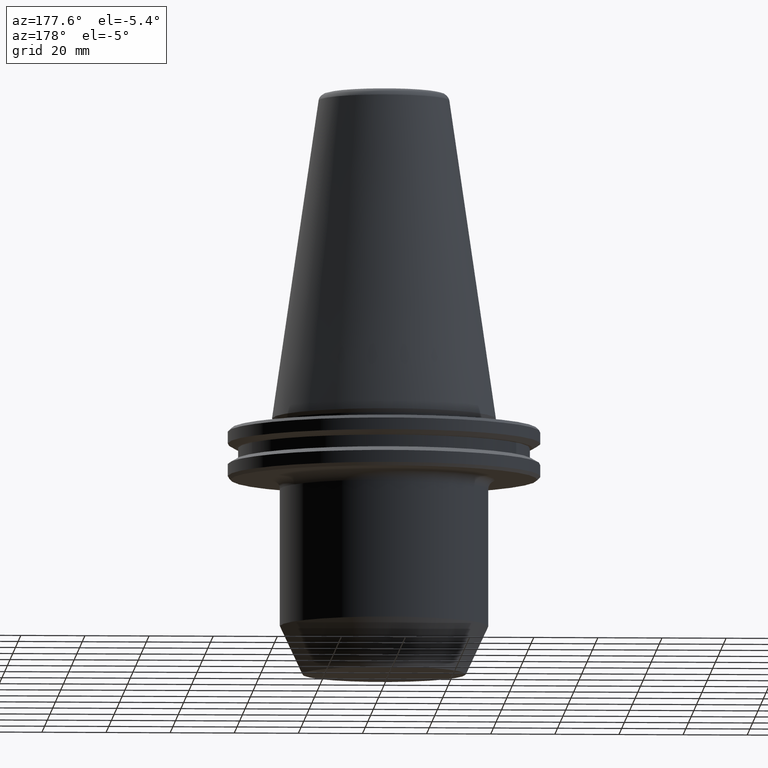
[diagram: clean part render]
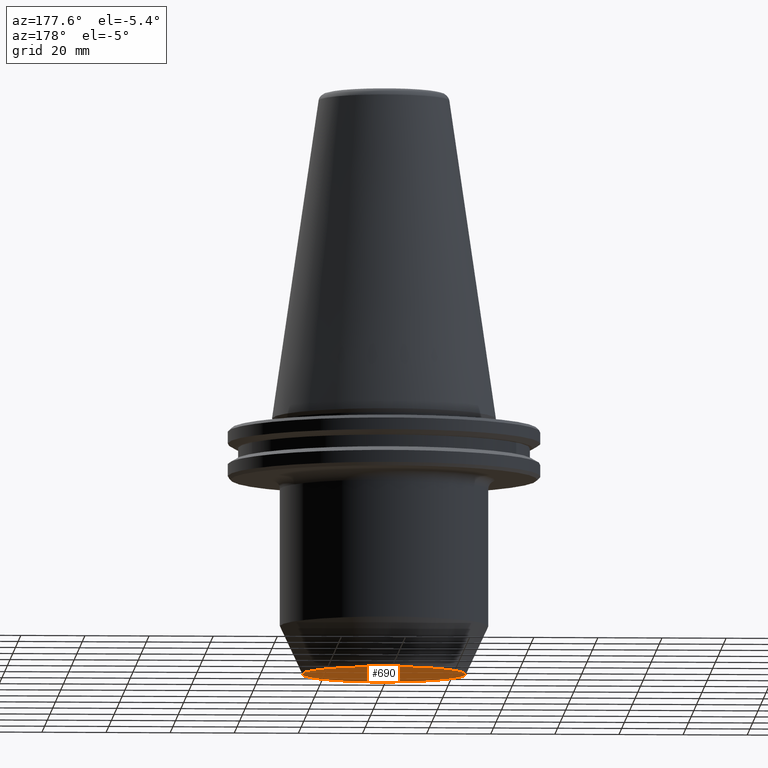
[diagram: same view with one face highlighted and labeled with its STEP entity id]
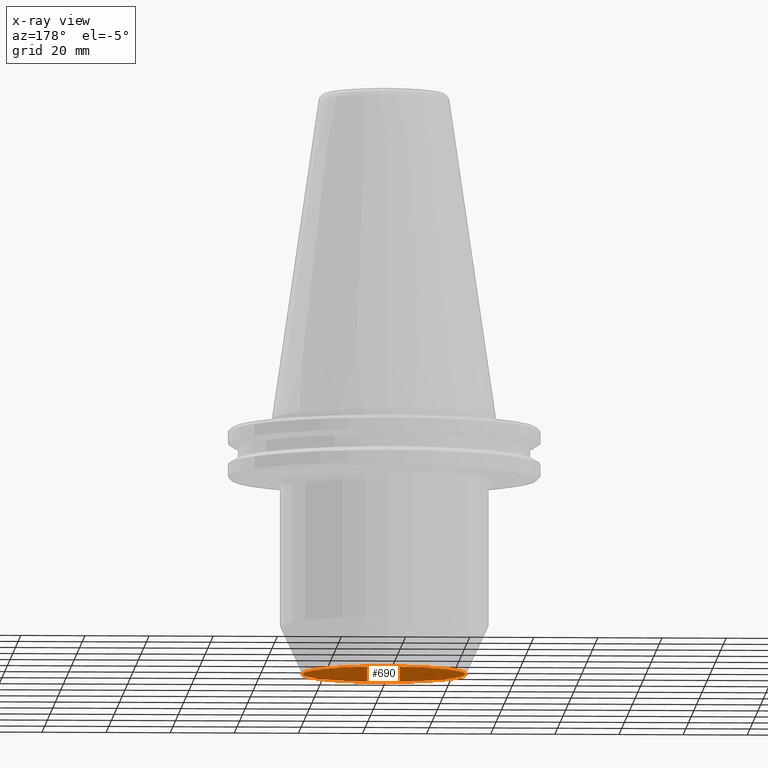
[diagram: x-ray of the same camera — body ghosted, the highlighted face saturated]
A machine part, auxiliary view. The second image highlights one B-rep face of the part: STEP entity #690.
The next image is the same camera in x-ray: the body ghosted, the highlighted face saturated — about 0% of this face is hidden behind the body in this view.
In plain terms, the highlighted planar face has unit normal (0, -0, 1).
Its self-contained STEP definition (entity closure, byte-faithful):
#57 = FACE_OUTER_BOUND ( 'NONE', #233, .T. ) ;
#113 = CARTESIAN_POINT ( 'NONE',  ( 25.50000000000000000, 0.0000000000000000000, -79.99999999999998600 ) ) ;
#121 = PLANE ( 'NONE',  #262 ) ;
#192 = VERTEX_POINT ( 'NONE', #113 ) ;
#233 = EDGE_LOOP ( 'NONE', ( #418, #572 ) ) ;
#242 = EDGE_CURVE ( 'NONE', #192, #248, #838, .T. ) ;
#248 = VERTEX_POINT ( 'NONE', #451 ) ;
#262 = AXIS2_PLACEMENT_3D ( 'NONE', #386, #303, #688 ) ;
#268 = DIRECTION ( 'NONE',  ( -0.0000000000000000000, -0.0000000000000000000, 1.000000000000000000 ) ) ;
#303 = DIRECTION ( 'NONE',  ( 0.0000000000000000000, -0.0000000000000000000, 1.000000000000000000 ) ) ;
#386 = CARTESIAN_POINT ( 'NONE',  ( 0.0000000000000000000, 0.0000000000000000000, -79.99999999999998600 ) ) ;
#418 = ORIENTED_EDGE ( 'NONE', *, *, #242, .F. ) ;
#451 = CARTESIAN_POINT ( 'NONE',  ( -25.50000000000000000, 3.551475717527324000E-015, -79.99999999999998600 ) ) ;
#490 = AXIS2_PLACEMENT_3D ( 'NONE', #854, #775, #613 ) ;
#572 = ORIENTED_EDGE ( 'NONE', *, *, #605, .F. ) ;
#605 = EDGE_CURVE ( 'NONE', #248, #192, #930, .T. ) ;
#613 = DIRECTION ( 'NONE',  ( 1.000000000000000000, 0.0000000000000000000, 0.0000000000000000000 ) ) ;
#688 = DIRECTION ( 'NONE',  ( 1.000000000000000000, 0.0000000000000000000, 0.0000000000000000000 ) ) ;
#690 = ADVANCED_FACE ( 'NONE', ( #57 ), #121, .F. ) ;
#740 = DIRECTION ( 'NONE',  ( 1.000000000000000000, 0.0000000000000000000, 0.0000000000000000000 ) ) ;
#775 = DIRECTION ( 'NONE',  ( -0.0000000000000000000, -0.0000000000000000000, 1.000000000000000000 ) ) ;
#838 = CIRCLE ( 'NONE', #959, 25.50000000000000000 ) ;
#842 = CARTESIAN_POINT ( 'NONE',  ( 0.0000000000000000000, 0.0000000000000000000, -79.99999999999998600 ) ) ;
#854 = CARTESIAN_POINT ( 'NONE',  ( 0.0000000000000000000, 0.0000000000000000000, -79.99999999999998600 ) ) ;
#930 = CIRCLE ( 'NONE', #490, 25.50000000000000000 ) ;
#959 = AXIS2_PLACEMENT_3D ( 'NONE', #842, #268, #740 ) ;